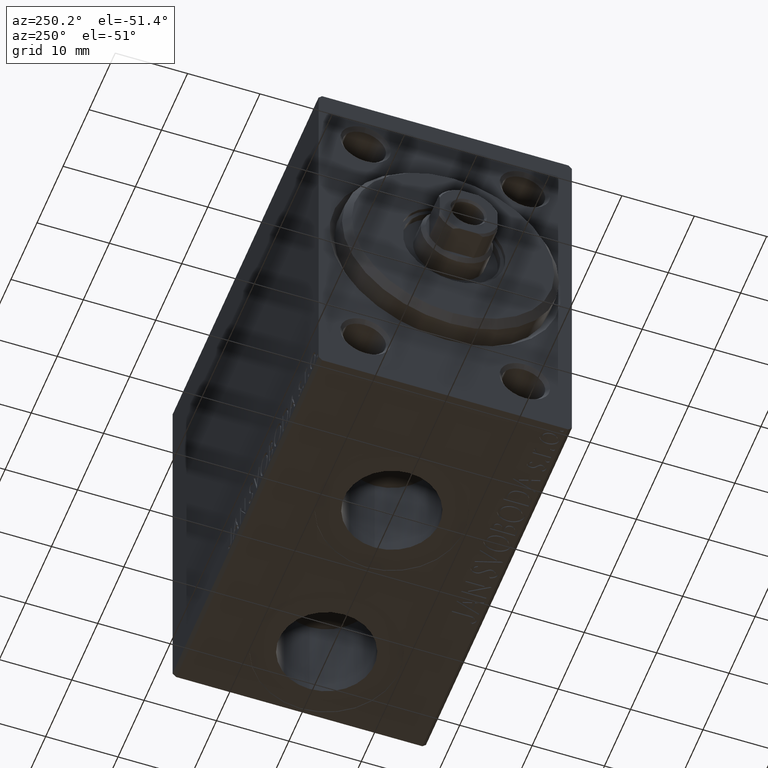
[diagram: clean part render]
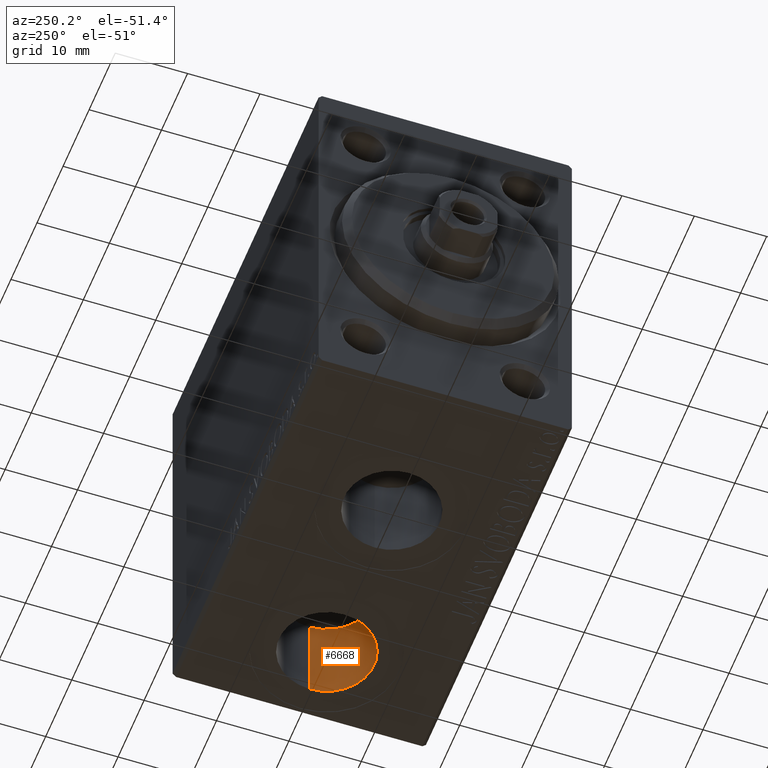
[diagram: same view with one face highlighted and labeled with its STEP entity id]
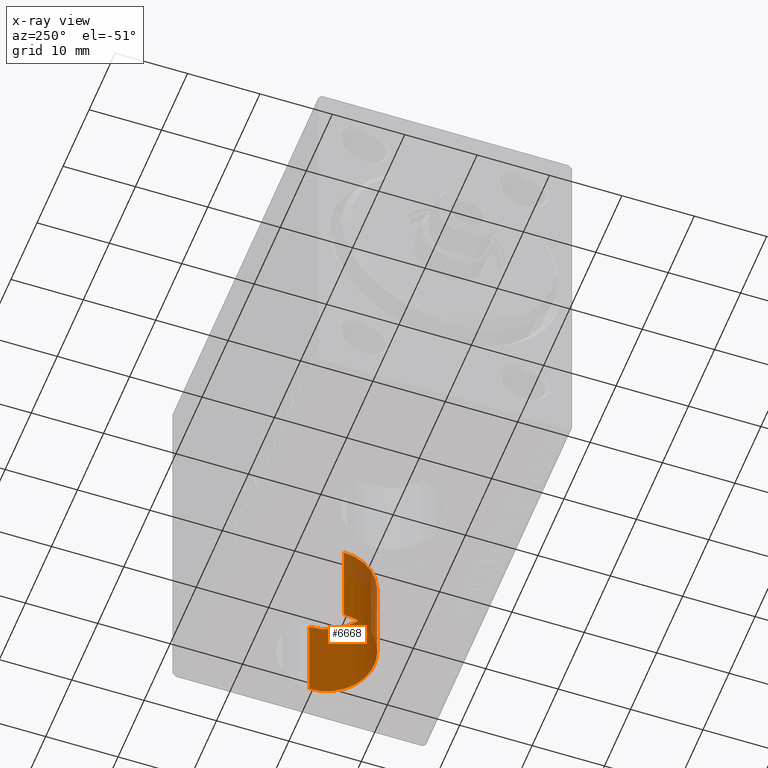
[diagram: x-ray of the same camera — body ghosted, the highlighted face saturated]
A machine part, auxiliary view. The second image highlights one B-rep face of the part: STEP entity #6668.
The next image is the same camera in x-ray: the body ghosted, the highlighted face saturated — about 13% of this face is hidden behind the body in this view.
In plain terms, the highlighted cylindrical surface (partial cylindrical patch) has radius 6.58 mm, axis along (-0, -0, -1).
Its self-contained STEP definition (entity closure, byte-faithful):
#490 = ORIENTED_EDGE ( 'NONE', *, *, #30050, .T. ) ;
#2100 = LINE ( 'NONE', #23727, #12269 ) ;
#2592 = DIRECTION ( 'NONE',  ( 0.000000000000000000, 0.000000000000000000, -1.000000000000000000 ) ) ;
#4545 = CIRCLE ( 'NONE', #35399, 6.580000000000002736 ) ;
#4898 = DIRECTION ( 'NONE',  ( -1.000000000000000000, 0.000000000000000000, 0.000000000000000000 ) ) ;
#6668 = ADVANCED_FACE ( 'NONE', ( #43330 ), #15477, .F. ) ;
#8158 = VERTEX_POINT ( 'NONE', #38502 ) ;
#9025 = EDGE_CURVE ( 'NONE', #22112, #38673, #2100, .T. ) ;
#9952 = DIRECTION ( 'NONE',  ( -1.000000000000000000, 0.000000000000000000, 0.000000000000000000 ) ) ;
#10193 = LINE ( 'NONE', #13648, #31454 ) ;
#12269 = VECTOR ( 'NONE', #44444, 1000.000000000000000 ) ;
#13648 = CARTESIAN_POINT ( 'NONE',  ( 38.91999999999999460, -5.788603209277299718E-15, -14.50000000000000711 ) ) ;
#14087 = ORIENTED_EDGE ( 'NONE', *, *, #15738, .F. ) ;
#15477 = CYLINDRICAL_SURFACE ( 'NONE', #30570, 6.580000000000002736 ) ;
#15654 = VERTEX_POINT ( 'NONE', #44728 ) ;
#15738 = EDGE_CURVE ( 'NONE', #15654, #8158, #10193, .T. ) ;
#17769 = CARTESIAN_POINT ( 'NONE',  ( 45.50000000000000000, -5.788603209277299718E-15, -14.50000000000000711 ) ) ;
#18221 = DIRECTION ( 'NONE',  ( -1.000000000000000000, 0.000000000000000000, 0.000000000000000000 ) ) ;
#21678 = DIRECTION ( 'NONE',  ( 0.000000000000000000, 0.000000000000000000, -1.000000000000000000 ) ) ;
#22112 = VERTEX_POINT ( 'NONE', #28863 ) ;
#23727 = CARTESIAN_POINT ( 'NONE',  ( 52.07999999999999829, -4.982785615438341465E-15, -14.50000000000000711 ) ) ;
#26834 = EDGE_LOOP ( 'NONE', ( #27441, #35919, #490, #14087 ) ) ;
#27377 = AXIS2_PLACEMENT_3D ( 'NONE', #17769, #21678, #18221 ) ;
#27441 = ORIENTED_EDGE ( 'NONE', *, *, #33318, .F. ) ;
#28351 = DIRECTION ( 'NONE',  ( -0.000000000000000000, -0.000000000000000000, -1.000000000000000000 ) ) ;
#28863 = CARTESIAN_POINT ( 'NONE',  ( 52.07999999999999829, -4.982785615438341465E-15, -14.50000000000000711 ) ) ;
#30050 = EDGE_CURVE ( 'NONE', #38673, #8158, #4545, .T. ) ;
#30570 = AXIS2_PLACEMENT_3D ( 'NONE', #44004, #36425, #4898 ) ;
#30894 = CARTESIAN_POINT ( 'NONE',  ( 45.50000000000000000, -5.788603209277299718E-15, -27.40000000000000924 ) ) ;
#31454 = VECTOR ( 'NONE', #28351, 1000.000000000000000 ) ;
#32388 = CARTESIAN_POINT ( 'NONE',  ( 52.07999999999999829, -4.982785615438341465E-15, -27.40000000000000924 ) ) ;
#33318 = EDGE_CURVE ( 'NONE', #22112, #15654, #37694, .T. ) ;
#35399 = AXIS2_PLACEMENT_3D ( 'NONE', #30894, #2592, #9952 ) ;
#35919 = ORIENTED_EDGE ( 'NONE', *, *, #9025, .T. ) ;
#36425 = DIRECTION ( 'NONE',  ( -0.000000000000000000, -0.000000000000000000, -1.000000000000000000 ) ) ;
#37694 = CIRCLE ( 'NONE', #27377, 6.580000000000002736 ) ;
#38502 = CARTESIAN_POINT ( 'NONE',  ( 38.91999999999999460, -5.788603209277299718E-15, -27.40000000000000924 ) ) ;
#38673 = VERTEX_POINT ( 'NONE', #32388 ) ;
#43330 = FACE_OUTER_BOUND ( 'NONE', #26834, .T. ) ;
#44004 = CARTESIAN_POINT ( 'NONE',  ( 45.50000000000000000, -5.788603209277299718E-15, -14.50000000000000711 ) ) ;
#44444 = DIRECTION ( 'NONE',  ( -0.000000000000000000, -0.000000000000000000, -1.000000000000000000 ) ) ;
#44728 = CARTESIAN_POINT ( 'NONE',  ( 38.91999999999999460, -5.788603209277299718E-15, -14.50000000000000711 ) ) ;